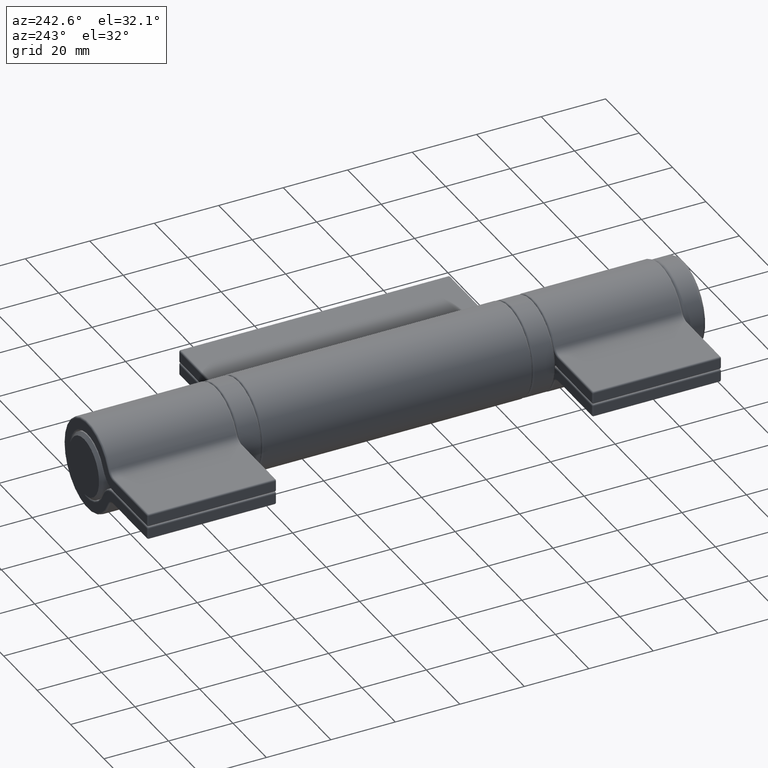
[diagram: clean part render]
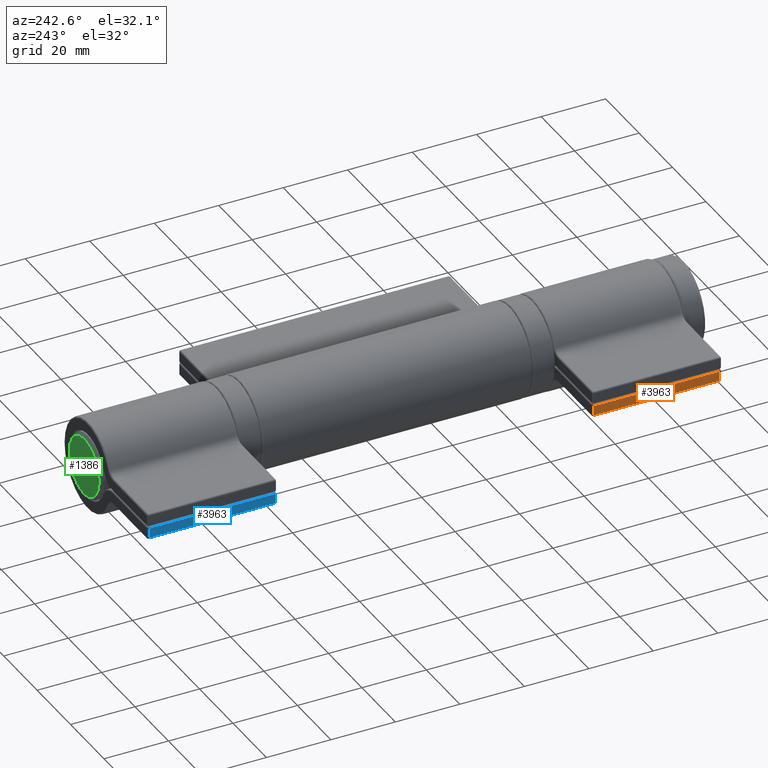
[diagram: same view with three faces highlighted in distinct colors, each labeled with its STEP entity id]
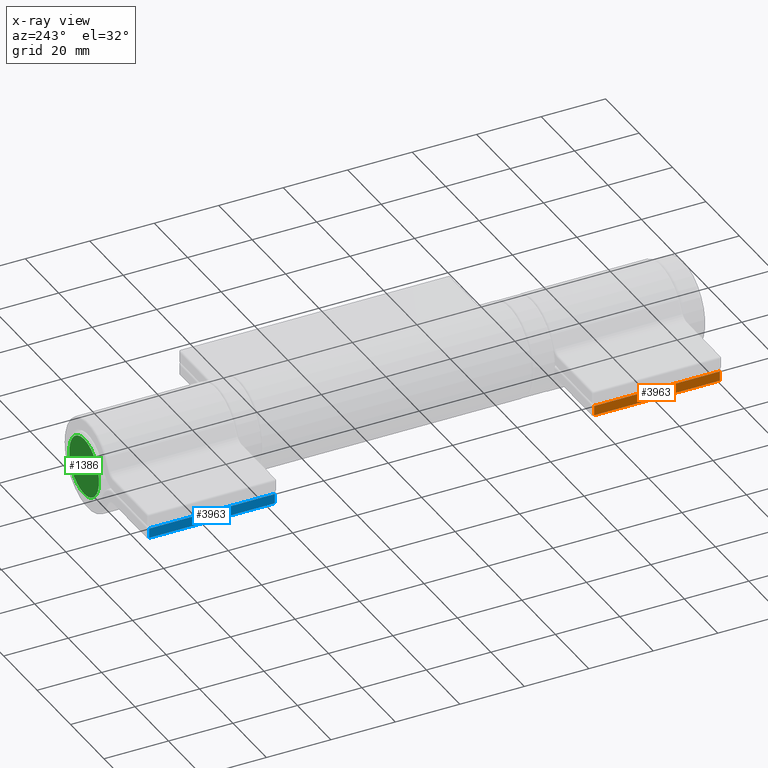
[diagram: x-ray of the same camera — body ghosted, the three highlighted faces saturated]
A machine part, auxiliary view with three faces highlighted in distinct colors.
The next image is the same camera in x-ray (body ghosted, the three faces saturated) — at least one of them is partly hidden behind the body in this view.
Their STEP definitions:

[orange] entity #3963 — the highlighted planar face has unit normal (1, 0, 0).
#3 = LINE ( 'NONE', #1131, #4584 ) ;
#126 = ORIENTED_EDGE ( 'NONE', *, *, #4694, .T. ) ;
#159 = CARTESIAN_POINT ( 'NONE',  ( 0.000000000000000000, 20.00000000000000000, 36.00000000000000000 ) ) ;
#1131 = CARTESIAN_POINT ( 'NONE',  ( -0.5499999999999988232, 20.00000000000000000, 36.00000000000000000 ) ) ;
#1582 = AXIS2_PLACEMENT_3D ( 'NONE', #159, #10134, #5982 ) ;
#1689 = EDGE_LOOP ( 'NONE', ( #8170, #4260, #9303, #126 ) ) ;
#2234 = LINE ( 'NONE', #6438, #9927 ) ;
#2646 = CARTESIAN_POINT ( 'NONE',  ( -3.549999999999998934, -19.50000000000000000, 36.00000000000000000 ) ) ;
#2670 = DIRECTION ( 'NONE',  ( 1.000000000000000000, 0.000000000000000000, 0.000000000000000000 ) ) ;
#2748 = LINE ( 'NONE', #7507, #7741 ) ;
#3268 = VERTEX_POINT ( 'NONE', #2646 ) ;
#3963 = ADVANCED_FACE ( 'NONE', ( #9546 ), #5106, .F. ) ;
#4260 = ORIENTED_EDGE ( 'NONE', *, *, #6182, .T. ) ;
#4265 = VERTEX_POINT ( 'NONE', #4626 ) ;
#4479 = DIRECTION ( 'NONE',  ( -1.000000000000000000, -0.000000000000000000, -0.000000000000000000 ) ) ;
#4584 = VECTOR ( 'NONE', #9422, 1000.000000000000000 ) ;
#4626 = CARTESIAN_POINT ( 'NONE',  ( -0.5499999999999988232, 19.50000000000000000, 36.00000000000000000 ) ) ;
#4687 = VERTEX_POINT ( 'NONE', #8738 ) ;
#4694 = EDGE_CURVE ( 'NONE', #4265, #4687, #2234, .T. ) ;
#4780 = DIRECTION ( 'NONE',  ( 0.000000000000000000, -1.000000000000000000, 0.000000000000000000 ) ) ;
#5106 = PLANE ( 'NONE',  #1582 ) ;
#5254 = EDGE_CURVE ( 'NONE', #10249, #4265, #3, .T. ) ;
#5492 = CARTESIAN_POINT ( 'NONE',  ( -3.549999999999998934, 20.00000000000000000, 36.00000000000000000 ) ) ;
#5982 = DIRECTION ( 'NONE',  ( -1.000000000000000000, 0.000000000000000000, -0.000000000000000000 ) ) ;
#6182 = EDGE_CURVE ( 'NONE', #3268, #10249, #2748, .T. ) ;
#6226 = VECTOR ( 'NONE', #4780, 1000.000000000000000 ) ;
#6438 = CARTESIAN_POINT ( 'NONE',  ( -4.049999999999998934, 19.50000000000000000, 36.00000000000000000 ) ) ;
#6658 = CARTESIAN_POINT ( 'NONE',  ( -0.5499999999999988232, -19.50000000000000000, 36.00000000000000000 ) ) ;
#7507 = CARTESIAN_POINT ( 'NONE',  ( 0.000000000000000000, -19.50000000000000000, 36.00000000000000000 ) ) ;
#7741 = VECTOR ( 'NONE', #2670, 1000.000000000000000 ) ;
#8170 = ORIENTED_EDGE ( 'NONE', *, *, #8554, .T. ) ;
#8554 = EDGE_CURVE ( 'NONE', #4687, #3268, #10135, .T. ) ;
#8738 = CARTESIAN_POINT ( 'NONE',  ( -3.549999999999998934, 19.50000000000000000, 36.00000000000000000 ) ) ;
#9303 = ORIENTED_EDGE ( 'NONE', *, *, #5254, .T. ) ;
#9422 = DIRECTION ( 'NONE',  ( -0.000000000000000000, 1.000000000000000000, -0.000000000000000000 ) ) ;
#9546 = FACE_OUTER_BOUND ( 'NONE', #1689, .T. ) ;
#9927 = VECTOR ( 'NONE', #4479, 1000.000000000000000 ) ;
#10134 = DIRECTION ( 'NONE',  ( 0.000000000000000000, 0.000000000000000000, -1.000000000000000000 ) ) ;
#10135 = LINE ( 'NONE', #5492, #6226 ) ;
#10249 = VERTEX_POINT ( 'NONE', #6658 ) ;

[blue] entity #3963 — the highlighted planar face has unit normal (1, 0, -0).
#3 = LINE ( 'NONE', #1131, #4584 ) ;
#126 = ORIENTED_EDGE ( 'NONE', *, *, #4694, .T. ) ;
#159 = CARTESIAN_POINT ( 'NONE',  ( 0.000000000000000000, 20.00000000000000000, 36.00000000000000000 ) ) ;
#1131 = CARTESIAN_POINT ( 'NONE',  ( -0.5499999999999988232, 20.00000000000000000, 36.00000000000000000 ) ) ;
#1582 = AXIS2_PLACEMENT_3D ( 'NONE', #159, #10134, #5982 ) ;
#1689 = EDGE_LOOP ( 'NONE', ( #8170, #4260, #9303, #126 ) ) ;
#2234 = LINE ( 'NONE', #6438, #9927 ) ;
#2646 = CARTESIAN_POINT ( 'NONE',  ( -3.549999999999998934, -19.50000000000000000, 36.00000000000000000 ) ) ;
#2670 = DIRECTION ( 'NONE',  ( 1.000000000000000000, 0.000000000000000000, 0.000000000000000000 ) ) ;
#2748 = LINE ( 'NONE', #7507, #7741 ) ;
#3268 = VERTEX_POINT ( 'NONE', #2646 ) ;
#3963 = ADVANCED_FACE ( 'NONE', ( #9546 ), #5106, .F. ) ;
#4260 = ORIENTED_EDGE ( 'NONE', *, *, #6182, .T. ) ;
#4265 = VERTEX_POINT ( 'NONE', #4626 ) ;
#4479 = DIRECTION ( 'NONE',  ( -1.000000000000000000, -0.000000000000000000, -0.000000000000000000 ) ) ;
#4584 = VECTOR ( 'NONE', #9422, 1000.000000000000000 ) ;
#4626 = CARTESIAN_POINT ( 'NONE',  ( -0.5499999999999988232, 19.50000000000000000, 36.00000000000000000 ) ) ;
#4687 = VERTEX_POINT ( 'NONE', #8738 ) ;
#4694 = EDGE_CURVE ( 'NONE', #4265, #4687, #2234, .T. ) ;
#4780 = DIRECTION ( 'NONE',  ( 0.000000000000000000, -1.000000000000000000, 0.000000000000000000 ) ) ;
#5106 = PLANE ( 'NONE',  #1582 ) ;
#5254 = EDGE_CURVE ( 'NONE', #10249, #4265, #3, .T. ) ;
#5492 = CARTESIAN_POINT ( 'NONE',  ( -3.549999999999998934, 20.00000000000000000, 36.00000000000000000 ) ) ;
#5982 = DIRECTION ( 'NONE',  ( -1.000000000000000000, 0.000000000000000000, -0.000000000000000000 ) ) ;
#6182 = EDGE_CURVE ( 'NONE', #3268, #10249, #2748, .T. ) ;
#6226 = VECTOR ( 'NONE', #4780, 1000.000000000000000 ) ;
#6438 = CARTESIAN_POINT ( 'NONE',  ( -4.049999999999998934, 19.50000000000000000, 36.00000000000000000 ) ) ;
#6658 = CARTESIAN_POINT ( 'NONE',  ( -0.5499999999999988232, -19.50000000000000000, 36.00000000000000000 ) ) ;
#7507 = CARTESIAN_POINT ( 'NONE',  ( 0.000000000000000000, -19.50000000000000000, 36.00000000000000000 ) ) ;
#7741 = VECTOR ( 'NONE', #2670, 1000.000000000000000 ) ;
#8170 = ORIENTED_EDGE ( 'NONE', *, *, #8554, .T. ) ;
#8554 = EDGE_CURVE ( 'NONE', #4687, #3268, #10135, .T. ) ;
#8738 = CARTESIAN_POINT ( 'NONE',  ( -3.549999999999998934, 19.50000000000000000, 36.00000000000000000 ) ) ;
#9303 = ORIENTED_EDGE ( 'NONE', *, *, #5254, .T. ) ;
#9422 = DIRECTION ( 'NONE',  ( -0.000000000000000000, 1.000000000000000000, -0.000000000000000000 ) ) ;
#9546 = FACE_OUTER_BOUND ( 'NONE', #1689, .T. ) ;
#9927 = VECTOR ( 'NONE', #4479, 1000.000000000000000 ) ;
#10134 = DIRECTION ( 'NONE',  ( 0.000000000000000000, 0.000000000000000000, -1.000000000000000000 ) ) ;
#10135 = LINE ( 'NONE', #5492, #6226 ) ;
#10249 = VERTEX_POINT ( 'NONE', #6658 ) ;

[green] entity #1386 — the highlighted planar face has unit normal (0, 1, 0).
#763 = DIRECTION ( 'NONE',  ( 0.000000000000000000, -0.000000000000000000, 1.000000000000000000 ) ) ;
#806 = DIRECTION ( 'NONE',  ( 0.000000000000000000, 1.000000000000000000, 0.000000000000000000 ) ) ;
#930 = CIRCLE ( 'NONE', #8996, 8.899999999999991473 ) ;
#1386 = ADVANCED_FACE ( 'NONE', ( #3322 ), #3361, .T. ) ;
#1952 = DIRECTION ( 'NONE',  ( 0.000000000000000000, 1.000000000000000000, 0.000000000000000000 ) ) ;
#3322 = FACE_OUTER_BOUND ( 'NONE', #6142, .T. ) ;
#3361 = PLANE ( 'NONE',  #6826 ) ;
#4437 = DIRECTION ( 'NONE',  ( 0.000000000000000000, 0.000000000000000000, 1.000000000000000000 ) ) ;
#5040 = EDGE_CURVE ( 'NONE', #9535, #9535, #930, .T. ) ;
#5652 = CARTESIAN_POINT ( 'NONE',  ( 0.000000000000000000, 186.0000000000000000, 8.899999999999991473 ) ) ;
#6142 = EDGE_LOOP ( 'NONE', ( #9857 ) ) ;
#6826 = AXIS2_PLACEMENT_3D ( 'NONE', #8331, #806, #763 ) ;
#8331 = CARTESIAN_POINT ( 'NONE',  ( 0.000000000000000000, 186.0000000000000000, 0.000000000000000000 ) ) ;
#8996 = AXIS2_PLACEMENT_3D ( 'NONE', #10211, #1952, #4437 ) ;
#9535 = VERTEX_POINT ( 'NONE', #5652 ) ;
#9857 = ORIENTED_EDGE ( 'NONE', *, *, #5040, .T. ) ;
#10211 = CARTESIAN_POINT ( 'NONE',  ( 0.000000000000000000, 186.0000000000000000, 0.000000000000000000 ) ) ;